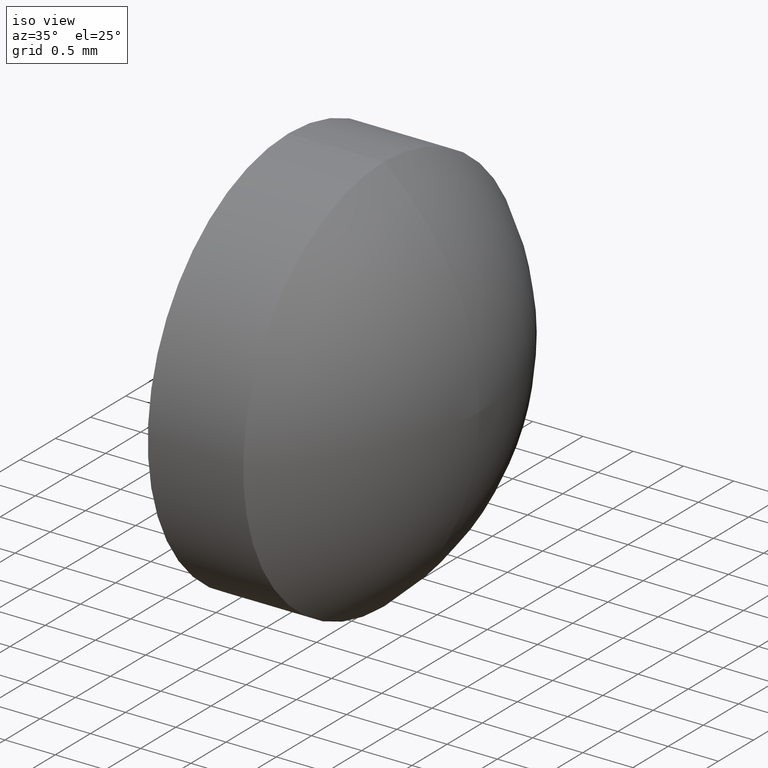
[diagram: clean part render]
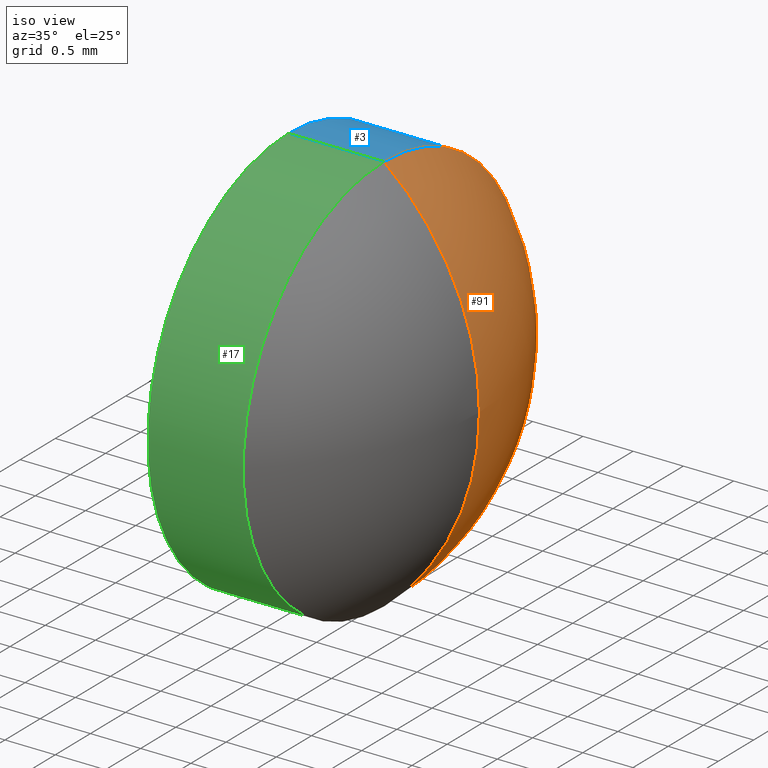
[diagram: same view with three faces highlighted in distinct colors, each labeled with its STEP entity id]
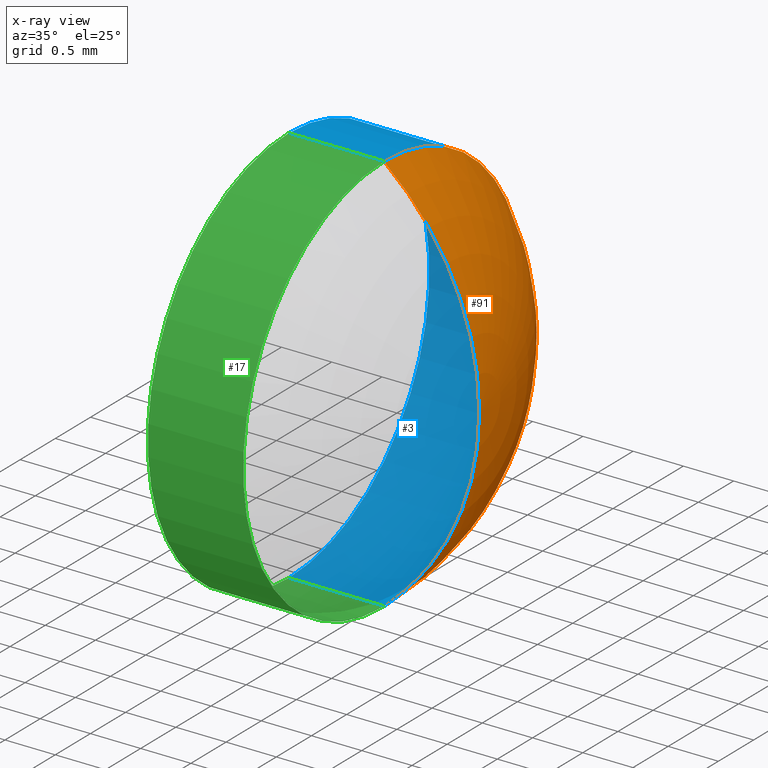
[diagram: x-ray of the same camera — body ghosted, the three highlighted faces saturated]
A machine part, iso view with three faces highlighted in distinct colors.
The next image is the same camera in x-ray (body ghosted, the three faces saturated) — at least one of them is partly hidden behind the body in this view.
Their STEP definitions:

[orange] entity #91 — the highlighted toroidal blend (fillet) surface has major radius 0.0013 mm and minor (blend) radius 2.5803 mm.
#14 = DIRECTION ( 'NONE',  ( 0.0000000000000000000, 0.0000000000000000000, 1.000000000000000000 ) ) ;
#26 = AXIS2_PLACEMENT_3D ( 'NONE', #66, #161, #45 ) ;
#28 = VERTEX_POINT ( 'NONE', #141 ) ;
#33 = DIRECTION ( 'NONE',  ( 0.0000000000000000000, 0.0000000000000000000, 1.000000000000000000 ) ) ;
#38 = DIRECTION ( 'NONE',  ( -1.000000000000000000, -0.0000000000000000000, -0.0000000000000000000 ) ) ;
#45 = DIRECTION ( 'NONE',  ( 0.0000000000000000000, 0.0000000000000000000, -1.000000000000000000 ) ) ;
#59 = CARTESIAN_POINT ( 'NONE',  ( 386.6647637488533200, -62.77572471947115700, 0.0000000000000000000 ) ) ;
#61 = AXIS2_PLACEMENT_3D ( 'NONE', #59, #69, #164 ) ;
#66 = CARTESIAN_POINT ( 'NONE',  ( 385.0345005909586000, -62.77572471947115700, 0.001348738342871191900 ) ) ;
#69 = DIRECTION ( 'NONE',  ( -1.000000000000000000, -0.0000000000000000000, -0.0000000000000000000 ) ) ;
#73 = CIRCLE ( 'NONE', #26, 2.580263157894727900 ) ;
#75 = ORIENTED_EDGE ( 'NONE', *, *, #104, .F. ) ;
#76 = CARTESIAN_POINT ( 'NONE',  ( 385.0345005909586000, -62.77572471947115700, 0.0000000000000000000 ) ) ;
#79 = VERTEX_POINT ( 'NONE', #89 ) ;
#86 = EDGE_LOOP ( 'NONE', ( #75, #122, #114 ) ) ;
#89 = CARTESIAN_POINT ( 'NONE',  ( 386.6647637488533200, -62.77572471947115700, -2.001348738342863400 ) ) ;
#91 = ADVANCED_FACE ( 'NONE', ( #99 ), #106, .T. ) ;
#99 = FACE_OUTER_BOUND ( 'NONE', #86, .T. ) ;
#104 = EDGE_CURVE ( 'NONE', #109, #28, #73, .T. ) ;
#106 = TOROIDAL_SURFACE ( 'NONE', #165, 0.001348738342871191900, 2.580263157894727900 ) ;
#107 = AXIS2_PLACEMENT_3D ( 'NONE', #146, #125, #33 ) ;
#109 = VERTEX_POINT ( 'NONE', #163 ) ;
#114 = ORIENTED_EDGE ( 'NONE', *, *, #152, .F. ) ;
#122 = ORIENTED_EDGE ( 'NONE', *, *, #128, .T. ) ;
#125 = DIRECTION ( 'NONE',  ( -0.0000000000000000000, 1.000000000000000000, 1.224646799147353200E-016 ) ) ;
#128 = EDGE_CURVE ( 'NONE', #109, #79, #135, .T. ) ;
#135 = CIRCLE ( 'NONE', #107, 2.580263157894727900 ) ;
#138 = CIRCLE ( 'NONE', #61, 2.001348738342852300 ) ;
#141 = CARTESIAN_POINT ( 'NONE',  ( 386.6647637488533200, -62.77572471947115700, 2.001348738342863400 ) ) ;
#146 = CARTESIAN_POINT ( 'NONE',  ( 385.0345005909586000, -62.77572471947115700, -0.001348738342871191900 ) ) ;
#152 = EDGE_CURVE ( 'NONE', #28, #79, #138, .T. ) ;
#161 = DIRECTION ( 'NONE',  ( 0.0000000000000000000, -1.000000000000000000, 0.0000000000000000000 ) ) ;
#163 = CARTESIAN_POINT ( 'NONE',  ( 387.6147633963514600, -62.77572471947115700, 0.0000000000000000000 ) ) ;
#164 = DIRECTION ( 'NONE',  ( 0.0000000000000000000, 0.0000000000000000000, 1.000000000000000000 ) ) ;
#165 = AXIS2_PLACEMENT_3D ( 'NONE', #76, #38, #14 ) ;

[blue] entity #3 — the highlighted cylindrical surface (partial cylindrical patch) has radius 2.0013 mm, axis along (-1, -0, -0).
#1 = CYLINDRICAL_SURFACE ( 'NONE', #136, 2.001348738342852300 ) ;
#2 = AXIS2_PLACEMENT_3D ( 'NONE', #134, #108, #67 ) ;
#3 = ADVANCED_FACE ( 'NONE', ( #72 ), #1, .T. ) ;
#4 = LINE ( 'NONE', #83, #10 ) ;
#10 = VECTOR ( 'NONE', #105, 1000.000000000000000 ) ;
#23 = ORIENTED_EDGE ( 'NONE', *, *, #152, .T. ) ;
#27 = VECTOR ( 'NONE', #74, 1000.000000000000000 ) ;
#28 = VERTEX_POINT ( 'NONE', #141 ) ;
#35 = ORIENTED_EDGE ( 'NONE', *, *, #111, .T. ) ;
#39 = ORIENTED_EDGE ( 'NONE', *, *, #46, .F. ) ;
#43 = EDGE_LOOP ( 'NONE', ( #23, #35, #58, #39 ) ) ;
#46 = EDGE_CURVE ( 'NONE', #28, #71, #151, .T. ) ;
#58 = ORIENTED_EDGE ( 'NONE', *, *, #143, .F. ) ;
#59 = CARTESIAN_POINT ( 'NONE',  ( 386.6647637488533200, -62.77572471947115700, 0.0000000000000000000 ) ) ;
#61 = AXIS2_PLACEMENT_3D ( 'NONE', #59, #69, #164 ) ;
#67 = DIRECTION ( 'NONE',  ( 0.0000000000000000000, 0.0000000000000000000, 1.000000000000000000 ) ) ;
#69 = DIRECTION ( 'NONE',  ( -1.000000000000000000, -0.0000000000000000000, -0.0000000000000000000 ) ) ;
#71 = VERTEX_POINT ( 'NONE', #93 ) ;
#72 = FACE_OUTER_BOUND ( 'NONE', #43, .T. ) ;
#74 = DIRECTION ( 'NONE',  ( -1.000000000000000000, -0.0000000000000000000, -0.0000000000000000000 ) ) ;
#79 = VERTEX_POINT ( 'NONE', #89 ) ;
#81 = CARTESIAN_POINT ( 'NONE',  ( 385.7147637488533300, -62.77572471947115700, -2.001348738342852300 ) ) ;
#83 = CARTESIAN_POINT ( 'NONE',  ( 385.3161618597546900, -62.77572471947115700, -2.001348738342852300 ) ) ;
#89 = CARTESIAN_POINT ( 'NONE',  ( 386.6647637488533200, -62.77572471947115700, -2.001348738342863400 ) ) ;
#93 = CARTESIAN_POINT ( 'NONE',  ( 385.7147637488533300, -62.77572471947115700, 2.001348738342852300 ) ) ;
#98 = CIRCLE ( 'NONE', #2, 2.001348738342852300 ) ;
#105 = DIRECTION ( 'NONE',  ( -1.000000000000000000, -0.0000000000000000000, -0.0000000000000000000 ) ) ;
#108 = DIRECTION ( 'NONE',  ( -1.000000000000000000, -0.0000000000000000000, -0.0000000000000000000 ) ) ;
#110 = VERTEX_POINT ( 'NONE', #81 ) ;
#111 = EDGE_CURVE ( 'NONE', #79, #110, #4, .T. ) ;
#113 = DIRECTION ( 'NONE',  ( -1.000000000000000000, -0.0000000000000000000, -0.0000000000000000000 ) ) ;
#115 = CARTESIAN_POINT ( 'NONE',  ( 385.3161618597546900, -62.77572471947115700, 2.001348738342852300 ) ) ;
#123 = CARTESIAN_POINT ( 'NONE',  ( 385.3161618597546900, -62.77572471947115700, 0.0000000000000000000 ) ) ;
#134 = CARTESIAN_POINT ( 'NONE',  ( 385.7147637488533300, -62.77572471947115700, 0.0000000000000000000 ) ) ;
#136 = AXIS2_PLACEMENT_3D ( 'NONE', #123, #113, #140 ) ;
#138 = CIRCLE ( 'NONE', #61, 2.001348738342852300 ) ;
#140 = DIRECTION ( 'NONE',  ( 0.0000000000000000000, 0.0000000000000000000, 1.000000000000000000 ) ) ;
#141 = CARTESIAN_POINT ( 'NONE',  ( 386.6647637488533200, -62.77572471947115700, 2.001348738342863400 ) ) ;
#143 = EDGE_CURVE ( 'NONE', #71, #110, #98, .T. ) ;
#151 = LINE ( 'NONE', #115, #27 ) ;
#152 = EDGE_CURVE ( 'NONE', #28, #79, #138, .T. ) ;
#164 = DIRECTION ( 'NONE',  ( 0.0000000000000000000, 0.0000000000000000000, 1.000000000000000000 ) ) ;

[green] entity #17 — the highlighted cylindrical surface (partial cylindrical patch) has radius 2.0013 mm, axis along (-1, -0, -0).
#4 = LINE ( 'NONE', #83, #10 ) ;
#10 = VECTOR ( 'NONE', #105, 1000.000000000000000 ) ;
#12 = EDGE_CURVE ( 'NONE', #79, #28, #96, .T. ) ;
#17 = ADVANCED_FACE ( 'NONE', ( #60 ), #126, .T. ) ;
#27 = VECTOR ( 'NONE', #74, 1000.000000000000000 ) ;
#28 = VERTEX_POINT ( 'NONE', #141 ) ;
#30 = AXIS2_PLACEMENT_3D ( 'NONE', #63, #156, #77 ) ;
#32 = AXIS2_PLACEMENT_3D ( 'NONE', #103, #65, #41 ) ;
#37 = AXIS2_PLACEMENT_3D ( 'NONE', #119, #133, #78 ) ;
#41 = DIRECTION ( 'NONE',  ( 0.0000000000000000000, 0.0000000000000000000, 1.000000000000000000 ) ) ;
#44 = CIRCLE ( 'NONE', #30, 2.001348738342852300 ) ;
#46 = EDGE_CURVE ( 'NONE', #28, #71, #151, .T. ) ;
#49 = ORIENTED_EDGE ( 'NONE', *, *, #53, .F. ) ;
#50 = EDGE_LOOP ( 'NONE', ( #149, #51, #153, #49 ) ) ;
#51 = ORIENTED_EDGE ( 'NONE', *, *, #12, .T. ) ;
#53 = EDGE_CURVE ( 'NONE', #110, #71, #44, .T. ) ;
#60 = FACE_OUTER_BOUND ( 'NONE', #50, .T. ) ;
#63 = CARTESIAN_POINT ( 'NONE',  ( 385.7147637488533300, -62.77572471947115700, 0.0000000000000000000 ) ) ;
#65 = DIRECTION ( 'NONE',  ( -1.000000000000000000, -0.0000000000000000000, -0.0000000000000000000 ) ) ;
#71 = VERTEX_POINT ( 'NONE', #93 ) ;
#74 = DIRECTION ( 'NONE',  ( -1.000000000000000000, -0.0000000000000000000, -0.0000000000000000000 ) ) ;
#77 = DIRECTION ( 'NONE',  ( 0.0000000000000000000, 0.0000000000000000000, 1.000000000000000000 ) ) ;
#78 = DIRECTION ( 'NONE',  ( 0.0000000000000000000, 0.0000000000000000000, 1.000000000000000000 ) ) ;
#79 = VERTEX_POINT ( 'NONE', #89 ) ;
#81 = CARTESIAN_POINT ( 'NONE',  ( 385.7147637488533300, -62.77572471947115700, -2.001348738342852300 ) ) ;
#83 = CARTESIAN_POINT ( 'NONE',  ( 385.3161618597546900, -62.77572471947115700, -2.001348738342852300 ) ) ;
#89 = CARTESIAN_POINT ( 'NONE',  ( 386.6647637488533200, -62.77572471947115700, -2.001348738342863400 ) ) ;
#93 = CARTESIAN_POINT ( 'NONE',  ( 385.7147637488533300, -62.77572471947115700, 2.001348738342852300 ) ) ;
#96 = CIRCLE ( 'NONE', #32, 2.001348738342852300 ) ;
#103 = CARTESIAN_POINT ( 'NONE',  ( 386.6647637488533200, -62.77572471947115700, 0.0000000000000000000 ) ) ;
#105 = DIRECTION ( 'NONE',  ( -1.000000000000000000, -0.0000000000000000000, -0.0000000000000000000 ) ) ;
#110 = VERTEX_POINT ( 'NONE', #81 ) ;
#111 = EDGE_CURVE ( 'NONE', #79, #110, #4, .T. ) ;
#115 = CARTESIAN_POINT ( 'NONE',  ( 385.3161618597546900, -62.77572471947115700, 2.001348738342852300 ) ) ;
#119 = CARTESIAN_POINT ( 'NONE',  ( 385.3161618597546900, -62.77572471947115700, 0.0000000000000000000 ) ) ;
#126 = CYLINDRICAL_SURFACE ( 'NONE', #37, 2.001348738342852300 ) ;
#133 = DIRECTION ( 'NONE',  ( -1.000000000000000000, -0.0000000000000000000, -0.0000000000000000000 ) ) ;
#141 = CARTESIAN_POINT ( 'NONE',  ( 386.6647637488533200, -62.77572471947115700, 2.001348738342863400 ) ) ;
#149 = ORIENTED_EDGE ( 'NONE', *, *, #111, .F. ) ;
#151 = LINE ( 'NONE', #115, #27 ) ;
#153 = ORIENTED_EDGE ( 'NONE', *, *, #46, .T. ) ;
#156 = DIRECTION ( 'NONE',  ( -1.000000000000000000, -0.0000000000000000000, -0.0000000000000000000 ) ) ;